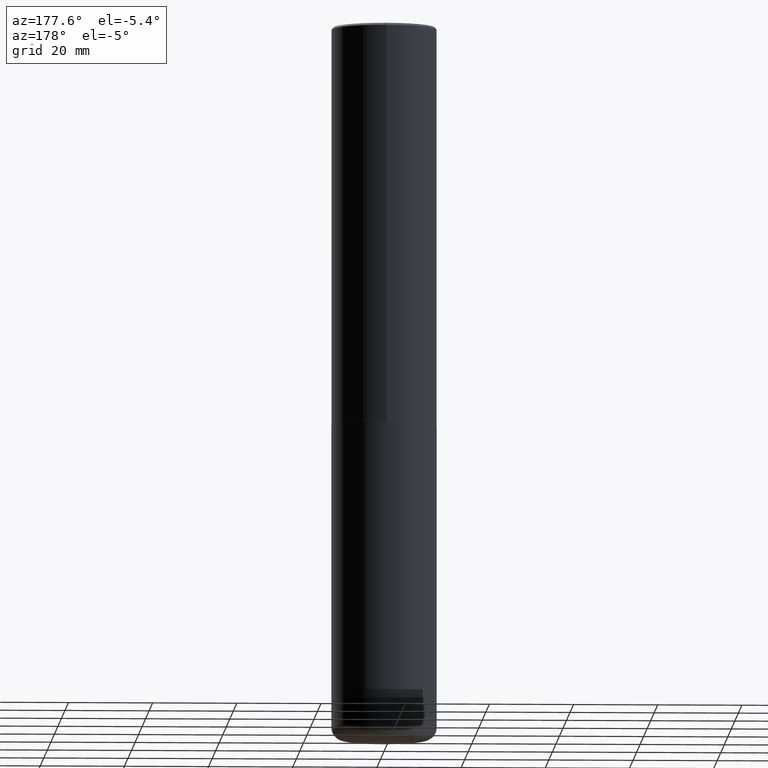
[diagram: clean part render]
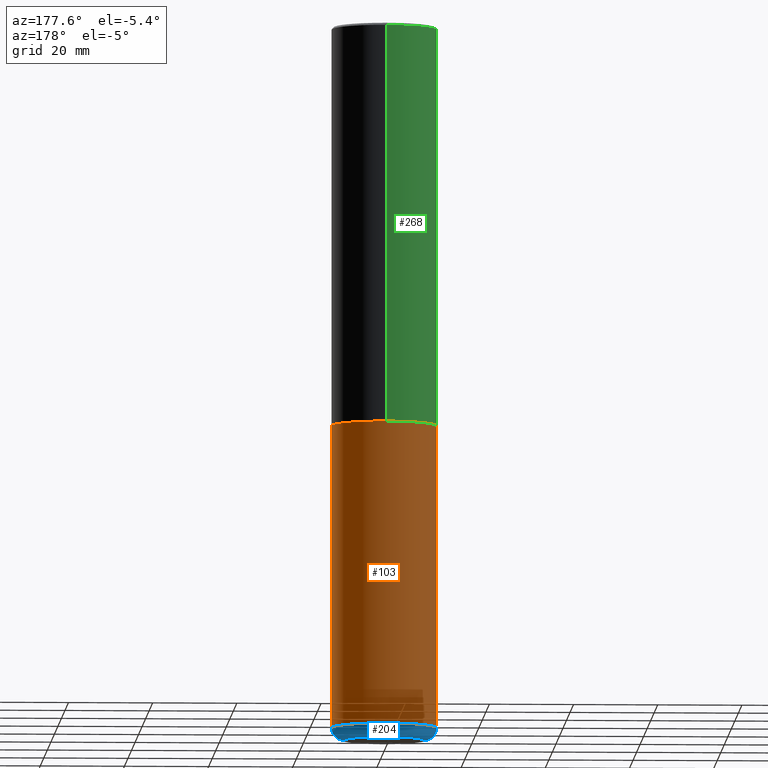
[diagram: same view with three faces highlighted in distinct colors, each labeled with its STEP entity id]
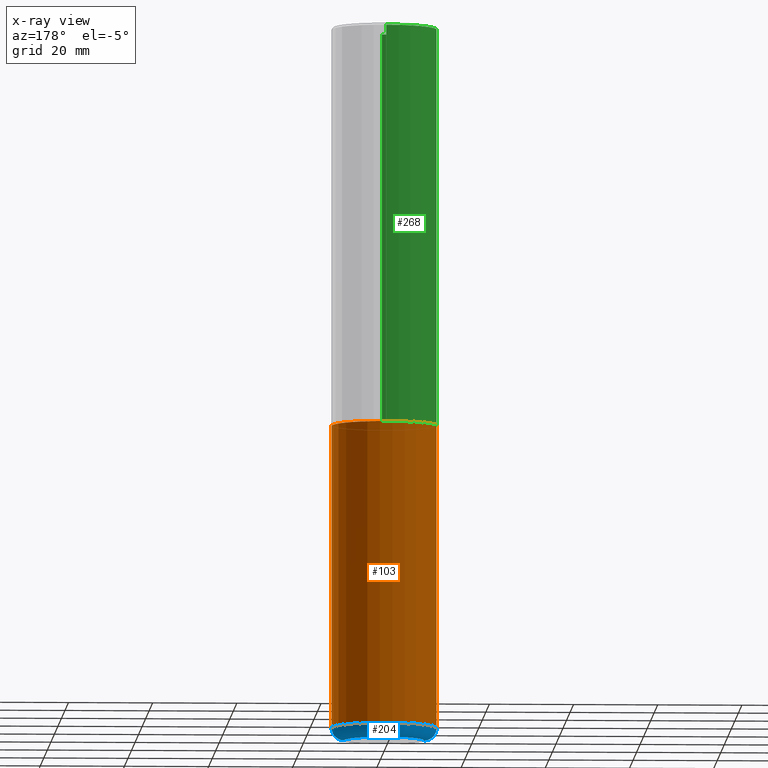
[diagram: x-ray of the same camera — body ghosted, the three highlighted faces saturated]
A machine part, auxiliary view with three faces highlighted in distinct colors.
The next image is the same camera in x-ray (body ghosted, the three faces saturated) — at least one of them is partly hidden behind the body in this view.
Their STEP definitions:

[orange] entity #103 — the highlighted cylindrical surface (partial cylindrical patch) has radius 12.5006 mm, axis along (-0, 0, 1).
#8 = EDGE_CURVE ( 'NONE', #330, #132, #64, .T. ) ;
#14 = EDGE_CURVE ( 'NONE', #160, #132, #167, .T. ) ;
#16 = LINE ( 'NONE', #143, #161 ) ;
#26 = CARTESIAN_POINT ( 'NONE',  ( -0.4921499999999999764, 3.496936074043332897E-15, -2.420853904668951509E-29 ) ) ;
#30 = DIRECTION ( 'NONE',  ( -2.445468806185136597E-29, 3.491481338843145583E-15, 1.000000000000000000 ) ) ;
#64 = LINE ( 'NONE', #26, #92 ) ;
#84 = AXIS2_PLACEMENT_3D ( 'NONE', #180, #251, #312 ) ;
#92 = VECTOR ( 'NONE', #149, 39.37007874015748143 ) ;
#103 = ADVANCED_FACE ( 'NONE', ( #316 ), #405, .T. ) ;
#124 = CARTESIAN_POINT ( 'NONE',  ( 0.000000000000000000, 0.000000000000000000, 0.000000000000000000 ) ) ;
#132 = VERTEX_POINT ( 'NONE', #201 ) ;
#143 = CARTESIAN_POINT ( 'NONE',  ( 0.4921499999999999764, -3.436665081823295777E-15, 2.399810400207969603E-29 ) ) ;
#146 = EDGE_CURVE ( 'NONE', #284, #160, #16, .T. ) ;
#149 = DIRECTION ( 'NONE',  ( -2.445468806185136877E-29, 3.491481338843145188E-15, 1.000000000000000000 ) ) ;
#158 = CARTESIAN_POINT ( 'NONE',  ( 1.607846830690603466E-28, -2.295579150662591525E-14, -6.574799999999999756 ) ) ;
#160 = VERTEX_POINT ( 'NONE', #172 ) ;
#161 = VECTOR ( 'NONE', #278, 39.37007874015748143 ) ;
#167 = CIRCLE ( 'NONE', #84, 0.4921499999999999764 ) ;
#170 = ORIENTED_EDGE ( 'NONE', *, *, #339, .T. ) ;
#172 = CARTESIAN_POINT ( 'NONE',  ( 0.4921499999999999764, -1.649515443723054663E-14, -3.740100000000000424 ) ) ;
#180 = CARTESIAN_POINT ( 'NONE',  ( 9.146297882013029477E-29, -1.305848935540725085E-14, -3.740100000000000424 ) ) ;
#186 = ORIENTED_EDGE ( 'NONE', *, *, #8, .T. ) ;
#201 = CARTESIAN_POINT ( 'NONE',  ( -0.4921499999999999764, -1.451020435697325173E-14, -3.740100000000000424 ) ) ;
#236 = ORIENTED_EDGE ( 'NONE', *, *, #14, .F. ) ;
#245 = EDGE_LOOP ( 'NONE', ( #170, #186, #236, #400 ) ) ;
#249 = DIRECTION ( 'NONE',  ( 1.000000000000000000, -6.982962677686265133E-15, 0.000000000000000000 ) ) ;
#251 = DIRECTION ( 'NONE',  ( -2.445468806185136597E-29, 3.491481338843145583E-15, 1.000000000000000000 ) ) ;
#264 = AXIS2_PLACEMENT_3D ( 'NONE', #158, #386, #249 ) ;
#278 = DIRECTION ( 'NONE',  ( -2.445468806185136877E-29, 3.491481338843145188E-15, 1.000000000000000000 ) ) ;
#284 = VERTEX_POINT ( 'NONE', #406 ) ;
#309 = CIRCLE ( 'NONE', #264, 0.4921500000000000319 ) ;
#312 = DIRECTION ( 'NONE',  ( 1.000000000000000000, -6.982962677686265922E-15, 0.000000000000000000 ) ) ;
#316 = FACE_OUTER_BOUND ( 'NONE', #245, .T. ) ;
#318 = CARTESIAN_POINT ( 'NONE',  ( -0.4921499999999999764, -1.945885543258258157E-14, -6.574799999999999756 ) ) ;
#330 = VERTEX_POINT ( 'NONE', #318 ) ;
#339 = EDGE_CURVE ( 'NONE', #284, #330, #309, .T. ) ;
#381 = DIRECTION ( 'NONE',  ( 1.000000000000000000, -6.982962677686265922E-15, 4.876176775795935793E-29 ) ) ;
#386 = DIRECTION ( 'NONE',  ( -2.445468806185136597E-29, 3.491481338843145583E-15, 1.000000000000000000 ) ) ;
#392 = AXIS2_PLACEMENT_3D ( 'NONE', #124, #30, #381 ) ;
#400 = ORIENTED_EDGE ( 'NONE', *, *, #146, .F. ) ;
#405 = CYLINDRICAL_SURFACE ( 'NONE', #392, 0.4921499999999999764 ) ;
#406 = CARTESIAN_POINT ( 'NONE',  ( 0.4921499999999999764, -2.639245658844920945E-14, -6.574799999999999756 ) ) ;

[blue] entity #204 — the highlighted toroidal blend (fillet) surface has major radius 9.5009 mm and minor (blend) radius 2.9997 mm.
#17 = DIRECTION ( 'NONE',  ( 1.000000000000000000, -6.982962677686265133E-15, 0.000000000000000000 ) ) ;
#18 = AXIS2_PLACEMENT_3D ( 'NONE', #259, #310, #17 ) ;
#32 = AXIS2_PLACEMENT_3D ( 'NONE', #401, #375, #349 ) ;
#43 = ORIENTED_EDGE ( 'NONE', *, *, #290, .F. ) ;
#53 = ORIENTED_EDGE ( 'NONE', *, *, #114, .T. ) ;
#114 = EDGE_CURVE ( 'NONE', #378, #330, #267, .T. ) ;
#122 = EDGE_CURVE ( 'NONE', #305, #378, #145, .T. ) ;
#145 = CIRCLE ( 'NONE', #18, 0.3740499999999999381 ) ;
#155 = DIRECTION ( 'NONE',  ( -6.982962677686266711E-15, -1.000000000000000000, 3.491481338843145583E-15 ) ) ;
#158 = CARTESIAN_POINT ( 'NONE',  ( 1.607846830690603466E-28, -2.295579150662591525E-14, -6.574799999999999756 ) ) ;
#181 = ORIENTED_EDGE ( 'NONE', *, *, #122, .T. ) ;
#188 = FACE_OUTER_BOUND ( 'NONE', #342, .T. ) ;
#190 = CARTESIAN_POINT ( 'NONE',  ( 0.3740499999999999381, -2.556776869621446119E-14, -6.574799999999999756 ) ) ;
#199 = ORIENTED_EDGE ( 'NONE', *, *, #339, .F. ) ;
#204 = ADVANCED_FACE ( 'NONE', ( #188 ), #212, .T. ) ;
#212 = TOROIDAL_SURFACE ( 'NONE', #32, 0.3740499999999999381, 0.1181000000000000660 ) ;
#249 = DIRECTION ( 'NONE',  ( 1.000000000000000000, -6.982962677686265133E-15, 0.000000000000000000 ) ) ;
#254 = CARTESIAN_POINT ( 'NONE',  ( -0.3740499999999999381, -2.029800640351526055E-14, -6.574799999999999756 ) ) ;
#258 = DIRECTION ( 'NONE',  ( 1.000000000000000000, -6.982962677686270655E-15, 0.000000000000000000 ) ) ;
#259 = CARTESIAN_POINT ( 'NONE',  ( 1.636727817291649966E-28, -2.336813545274328780E-14, -6.692899999999999849 ) ) ;
#264 = AXIS2_PLACEMENT_3D ( 'NONE', #158, #386, #249 ) ;
#267 = CIRCLE ( 'NONE', #300, 0.1181000000000000383 ) ;
#272 = CIRCLE ( 'NONE', #370, 0.1181000000000000383 ) ;
#284 = VERTEX_POINT ( 'NONE', #406 ) ;
#290 = EDGE_CURVE ( 'NONE', #305, #284, #272, .T. ) ;
#293 = DIRECTION ( 'NONE',  ( 7.105427357601001859E-15, 1.000000000000000000, -3.491481338843145583E-15 ) ) ;
#300 = AXIS2_PLACEMENT_3D ( 'NONE', #254, #293, #351 ) ;
#305 = VERTEX_POINT ( 'NONE', #321 ) ;
#309 = CIRCLE ( 'NONE', #264, 0.4921500000000000319 ) ;
#310 = DIRECTION ( 'NONE',  ( -2.445468806185136597E-29, 3.491481338843145583E-15, 1.000000000000000000 ) ) ;
#318 = CARTESIAN_POINT ( 'NONE',  ( -0.4921499999999999764, -1.945885543258258157E-14, -6.574799999999999756 ) ) ;
#321 = CARTESIAN_POINT ( 'NONE',  ( 0.3740499999999999381, -2.598011264233183690E-14, -6.692899999999999849 ) ) ;
#330 = VERTEX_POINT ( 'NONE', #318 ) ;
#339 = EDGE_CURVE ( 'NONE', #284, #330, #309, .T. ) ;
#342 = EDGE_LOOP ( 'NONE', ( #181, #53, #199, #43 ) ) ;
#349 = DIRECTION ( 'NONE',  ( 1.000000000000000000, -6.982962677686266711E-15, 4.883557194083112340E-29 ) ) ;
#351 = DIRECTION ( 'NONE',  ( -1.000000000000000000, 7.105427357601001859E-15, 0.000000000000000000 ) ) ;
#358 = CARTESIAN_POINT ( 'NONE',  ( -0.3740499999999999381, -2.008460289110760576E-14, -6.692899999999999849 ) ) ;
#370 = AXIS2_PLACEMENT_3D ( 'NONE', #190, #155, #258 ) ;
#375 = DIRECTION ( 'NONE',  ( -2.445468806185136597E-29, 3.491481338843145583E-15, 1.000000000000000000 ) ) ;
#378 = VERTEX_POINT ( 'NONE', #358 ) ;
#386 = DIRECTION ( 'NONE',  ( -2.445468806185136597E-29, 3.491481338843145583E-15, 1.000000000000000000 ) ) ;
#401 = CARTESIAN_POINT ( 'NONE',  ( 1.607846830690603466E-28, -2.295579150662591525E-14, -6.574799999999999756 ) ) ;
#406 = CARTESIAN_POINT ( 'NONE',  ( 0.4921499999999999764, -2.639245658844920945E-14, -6.574799999999999756 ) ) ;

[green] entity #268 — the highlighted cylindrical surface (partial cylindrical patch) has radius 12.5006 mm, axis along (-0, 0, 1).
#3 = CIRCLE ( 'NONE', #237, 0.4921500000000003650 ) ;
#4 = EDGE_CURVE ( 'NONE', #90, #194, #148, .T. ) ;
#6 = EDGE_LOOP ( 'NONE', ( #307, #13, #275, #348 ) ) ;
#13 = ORIENTED_EDGE ( 'NONE', *, *, #59, .T. ) ;
#55 = DIRECTION ( 'NONE',  ( -6.982962677686265922E-15, -1.000000000000000000, 3.490754157143982552E-15 ) ) ;
#59 = EDGE_CURVE ( 'NONE', #90, #79, #3, .T. ) ;
#75 = EDGE_CURVE ( 'NONE', #79, #178, #320, .T. ) ;
#76 = VECTOR ( 'NONE', #315, 39.37007874015748143 ) ;
#79 = VERTEX_POINT ( 'NONE', #247 ) ;
#82 = CARTESIAN_POINT ( 'NONE',  ( 4.891953188903329688E-31, -6.981508314288001687E-17, -0.02000000000000010797 ) ) ;
#90 = VERTEX_POINT ( 'NONE', #376 ) ;
#97 = AXIS2_PLACEMENT_3D ( 'NONE', #82, #411, #292 ) ;
#112 = CIRCLE ( 'NONE', #97, 0.4921499999999999209 ) ;
#117 = DIRECTION ( 'NONE',  ( -2.445976594451651672E-29, 3.490754157143982552E-15, 1.000000000000000000 ) ) ;
#123 = CARTESIAN_POINT ( 'NONE',  ( 3.436665081823295777E-15, 0.4921499999999998098, -0.02000000000000182188 ) ) ;
#126 = CARTESIAN_POINT ( 'NONE',  ( 0.000000000000000000, 0.000000000000000000, 0.000000000000000000 ) ) ;
#148 = LINE ( 'NONE', #281, #76 ) ;
#178 = VERTEX_POINT ( 'NONE', #415 ) ;
#194 = VERTEX_POINT ( 'NONE', #123 ) ;
#210 = AXIS2_PLACEMENT_3D ( 'NONE', #126, #285, #55 ) ;
#218 = VECTOR ( 'NONE', #117, 39.37007874015748143 ) ;
#237 = AXIS2_PLACEMENT_3D ( 'NONE', #373, #402, #289 ) ;
#238 = EDGE_CURVE ( 'NONE', #194, #178, #112, .T. ) ;
#247 = CARTESIAN_POINT ( 'NONE',  ( -3.436665081823207030E-15, -0.4921500000000134101, -3.739099999999998758 ) ) ;
#268 = ADVANCED_FACE ( 'NONE', ( #355 ), #319, .T. ) ;
#275 = ORIENTED_EDGE ( 'NONE', *, *, #75, .T. ) ;
#281 = CARTESIAN_POINT ( 'NONE',  ( 3.496936074043333291E-15, 0.4921500000000000874, -1.717974658438411319E-15 ) ) ;
#282 = CARTESIAN_POINT ( 'NONE',  ( -3.436665081823296565E-15, -0.4921500000000000874, 1.717974658438411319E-15 ) ) ;
#285 = DIRECTION ( 'NONE',  ( -2.445976594451651952E-29, 3.490754157143982552E-15, 1.000000000000000000 ) ) ;
#289 = DIRECTION ( 'NONE',  ( -6.982962677686265922E-15, -1.000000000000000000, 3.330506545156063496E-15 ) ) ;
#292 = DIRECTION ( 'NONE',  ( -6.982962677686265922E-15, -1.000000000000000000, 3.486624039460257331E-15 ) ) ;
#307 = ORIENTED_EDGE ( 'NONE', *, *, #4, .F. ) ;
#315 = DIRECTION ( 'NONE',  ( -2.445976594451651672E-29, 3.490754157143982552E-15, 1.000000000000000000 ) ) ;
#319 = CYLINDRICAL_SURFACE ( 'NONE', #210, 0.4921500000000000874 ) ;
#320 = LINE ( 'NONE', #282, #218 ) ;
#348 = ORIENTED_EDGE ( 'NONE', *, *, #238, .F. ) ;
#355 = FACE_OUTER_BOUND ( 'NONE', #6, .T. ) ;
#373 = CARTESIAN_POINT ( 'NONE',  ( 9.145751084314172604E-29, -1.305227886897706845E-14, -3.739100000000000534 ) ) ;
#376 = CARTESIAN_POINT ( 'NONE',  ( 3.496936074043380229E-15, 0.4921499999999873198, -3.739100000000002311 ) ) ;
#402 = DIRECTION ( 'NONE',  ( -2.445976594451651952E-29, 3.490754157143982552E-15, 1.000000000000000000 ) ) ;
#411 = DIRECTION ( 'NONE',  ( -2.445976594451651952E-29, 3.490754157143982552E-15, 1.000000000000000000 ) ) ;
#415 = CARTESIAN_POINT ( 'NONE',  ( -3.376394089603257868E-15, -0.4921499999999999764, -0.01999999999999839059 ) ) ;